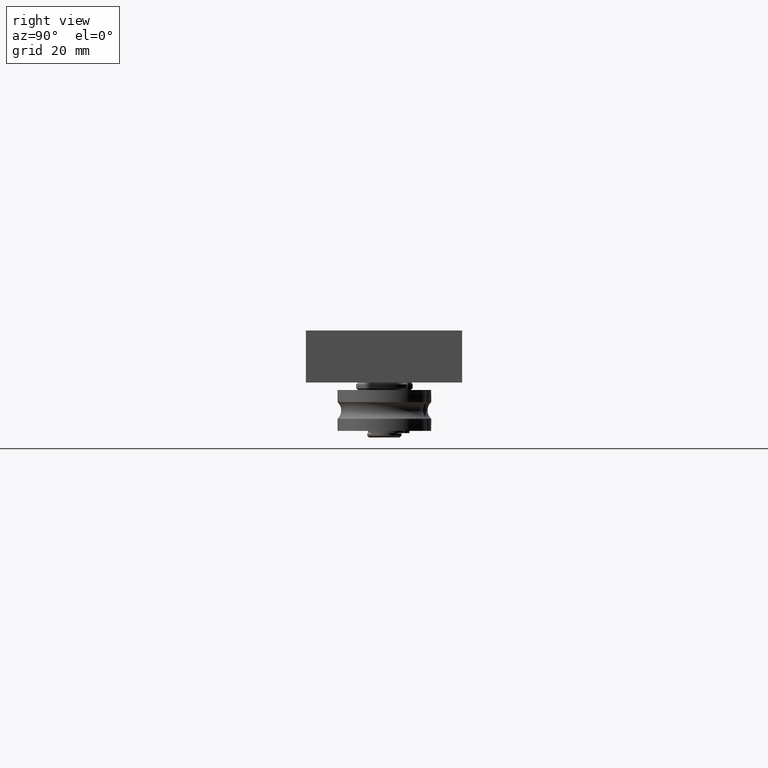
[diagram: clean part render]
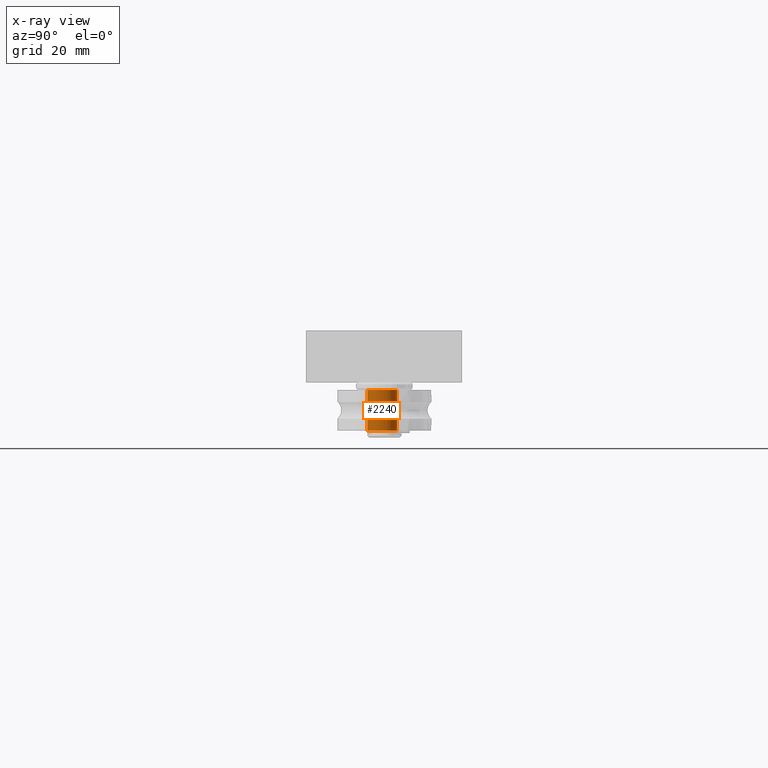
[diagram: x-ray — body ghosted, one internal face saturated and labeled with its STEP entity id]
A machine part, right view, then the same camera in x-ray: the body is ghosted and one INTERNAL B-rep face — a face not visible from any outside direction — is saturated and labeled: STEP entity #2240.
In plain terms, the highlighted cylindrical surface (bore or boss wall) has radius 4 mm, axis along (0, 0, 1).
Its self-contained STEP definition (entity closure, byte-faithful):
#371=FACE_OUTER_BOUND('',#554,.T.);
#554=EDGE_LOOP('',(#1862,#1863,#1864,#1865));
#698=LINE('',#3931,#836);
#836=VECTOR('',#3258,4.);
#953=CIRCLE('',#2655,4.);
#968=CIRCLE('',#2682,4.);
#1122=VERTEX_POINT('',#3881);
#1136=VERTEX_POINT('',#3928);
#1366=EDGE_CURVE('',#1122,#1122,#953,.T.);
#1387=EDGE_CURVE('',#1136,#1136,#968,.T.);
#1388=EDGE_CURVE('',#1136,#1122,#698,.T.);
#1862=ORIENTED_EDGE('',*,*,#1387,.T.);
#1863=ORIENTED_EDGE('',*,*,#1388,.T.);
#1864=ORIENTED_EDGE('',*,*,#1366,.F.);
#1865=ORIENTED_EDGE('',*,*,#1388,.F.);
#2134=CYLINDRICAL_SURFACE('',#2683,4.);
#2240=ADVANCED_FACE('',(#371),#2134,.F.);
#2655=AXIS2_PLACEMENT_3D('',#3882,#3194,#3195);
#2682=AXIS2_PLACEMENT_3D('',#3929,#3254,#3255);
#2683=AXIS2_PLACEMENT_3D('',#3930,#3256,#3257);
#3194=DIRECTION('center_axis',(1.,0.,0.));
#3195=DIRECTION('ref_axis',(0.,1.,0.));
#3254=DIRECTION('center_axis',(1.,0.,0.));
#3255=DIRECTION('ref_axis',(0.,1.,0.));
#3256=DIRECTION('center_axis',(1.,0.,0.));
#3257=DIRECTION('ref_axis',(0.,1.,0.));
#3258=DIRECTION('',(-1.,0.,0.));
#3881=CARTESIAN_POINT('',(-5.5,-4.,-4.89858719658941E-16));
#3882=CARTESIAN_POINT('Origin',(-5.5,0.,0.));
#3928=CARTESIAN_POINT('',(5.5,-4.,-4.89858719658941E-16));
#3929=CARTESIAN_POINT('Origin',(5.5,0.,0.));
#3930=CARTESIAN_POINT('Origin',(0.,0.,0.));
#3931=CARTESIAN_POINT('',(0.,-4.,-4.89858719658941E-16));